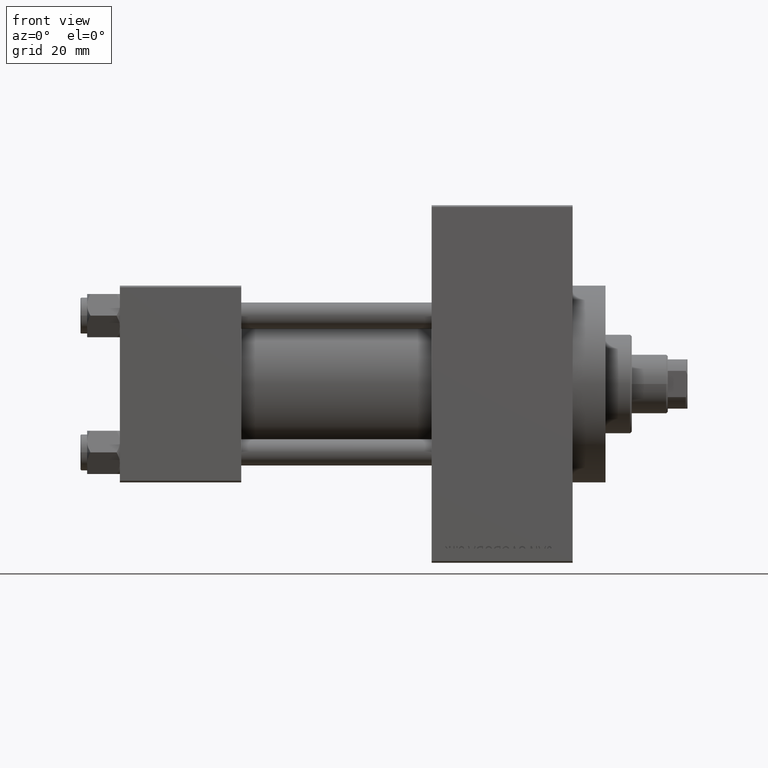
[diagram: clean part render]
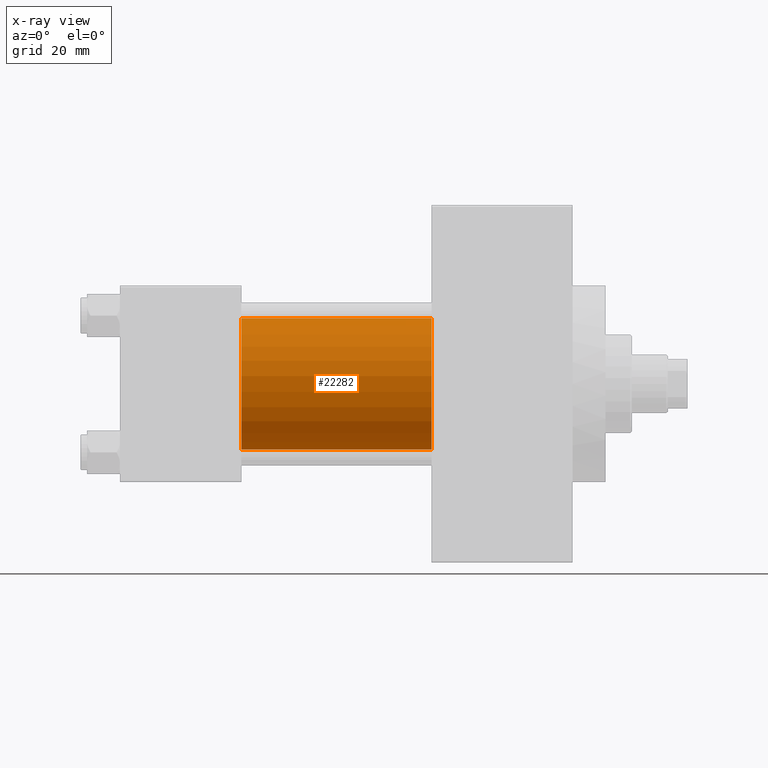
[diagram: x-ray — body ghosted, one internal face saturated and labeled with its STEP entity id]
A machine part, front view, then the same camera in x-ray: the body is ghosted and one INTERNAL B-rep face — a face not visible from any outside direction — is saturated and labeled: STEP entity #22282.
In plain terms, the highlighted cylindrical surface (partial cylindrical patch) has radius 20 mm, axis along (-1, -0, -0).
Its self-contained STEP definition (entity closure, byte-faithful):
#298 = DIRECTION ( 'NONE',  ( 0.000000000000000000, 0.000000000000000000, 1.000000000000000000 ) ) ;
#543 = DIRECTION ( 'NONE',  ( -1.000000000000000000, -0.000000000000000000, -0.000000000000000000 ) ) ;
#1072 = VECTOR ( 'NONE', #39948, 1000.000000000000000 ) ;
#1163 = VERTEX_POINT ( 'NONE', #10085 ) ;
#2867 = DIRECTION ( 'NONE',  ( -1.000000000000000000, -0.000000000000000000, -0.000000000000000000 ) ) ;
#3183 = CIRCLE ( 'NONE', #29094, 20.00000000000000000 ) ;
#4909 = CIRCLE ( 'NONE', #10980, 20.00000000000000000 ) ;
#5663 = CARTESIAN_POINT ( 'NONE',  ( 95.00000000000000000, -2.602085213965210642E-15, 0.000000000000000000 ) ) ;
#9243 = DIRECTION ( 'NONE',  ( 1.000000000000000000, 0.000000000000000000, 0.000000000000000000 ) ) ;
#9357 = CARTESIAN_POINT ( 'NONE',  ( 37.00000000000000000, -2.602085213965210642E-15, 20.00000000000000000 ) ) ;
#10085 = CARTESIAN_POINT ( 'NONE',  ( 95.00000000000000000, -2.602085213965210642E-15, 20.00000000000000000 ) ) ;
#10980 = AXIS2_PLACEMENT_3D ( 'NONE', #5663, #9243, #20247 ) ;
#11519 = FACE_OUTER_BOUND ( 'NONE', #21485, .T. ) ;
#11873 = EDGE_CURVE ( 'NONE', #1163, #18023, #33252, .T. ) ;
#12489 = AXIS2_PLACEMENT_3D ( 'NONE', #44037, #543, #298 ) ;
#16457 = ORIENTED_EDGE ( 'NONE', *, *, #39683, .F. ) ;
#18023 = VERTEX_POINT ( 'NONE', #9357 ) ;
#18706 = CYLINDRICAL_SURFACE ( 'NONE', #12489, 20.00000000000000000 ) ;
#20247 = DIRECTION ( 'NONE',  ( 0.000000000000000000, 0.000000000000000000, -1.000000000000000000 ) ) ;
#21485 = EDGE_LOOP ( 'NONE', ( #46363, #45162, #16457, #25800 ) ) ;
#22282 = ADVANCED_FACE ( 'NONE', ( #11519 ), #18706, .F. ) ;
#25511 = EDGE_CURVE ( 'NONE', #1163, #37705, #4909, .T. ) ;
#25800 = ORIENTED_EDGE ( 'NONE', *, *, #11873, .F. ) ;
#26377 = EDGE_CURVE ( 'NONE', #37705, #40705, #46804, .T. ) ;
#27447 = DIRECTION ( 'NONE',  ( 1.000000000000000000, 0.000000000000000000, 0.000000000000000000 ) ) ;
#29094 = AXIS2_PLACEMENT_3D ( 'NONE', #42760, #27447, #35575 ) ;
#29834 = CARTESIAN_POINT ( 'NONE',  ( 95.00000000000000000, -1.527916156705046464E-16, -20.00000000000000000 ) ) ;
#33252 = LINE ( 'NONE', #36362, #1072 ) ;
#33957 = VECTOR ( 'NONE', #2867, 1000.000000000000000 ) ;
#35575 = DIRECTION ( 'NONE',  ( 0.000000000000000000, 0.000000000000000000, -1.000000000000000000 ) ) ;
#36362 = CARTESIAN_POINT ( 'NONE',  ( 95.00000000000000000, -2.602085213965210642E-15, 20.00000000000000000 ) ) ;
#37705 = VERTEX_POINT ( 'NONE', #29834 ) ;
#39351 = CARTESIAN_POINT ( 'NONE',  ( 37.00000000000000000, -1.527916156705046464E-16, -20.00000000000000000 ) ) ;
#39631 = CARTESIAN_POINT ( 'NONE',  ( 95.00000000000000000, -1.527916156705046464E-16, -20.00000000000000000 ) ) ;
#39683 = EDGE_CURVE ( 'NONE', #18023, #40705, #3183, .T. ) ;
#39948 = DIRECTION ( 'NONE',  ( -1.000000000000000000, -0.000000000000000000, -0.000000000000000000 ) ) ;
#40705 = VERTEX_POINT ( 'NONE', #39351 ) ;
#42760 = CARTESIAN_POINT ( 'NONE',  ( 37.00000000000000000, -2.602085213965210642E-15, 0.000000000000000000 ) ) ;
#44037 = CARTESIAN_POINT ( 'NONE',  ( 95.00000000000000000, -2.602085213965210642E-15, 0.000000000000000000 ) ) ;
#45162 = ORIENTED_EDGE ( 'NONE', *, *, #26377, .T. ) ;
#46363 = ORIENTED_EDGE ( 'NONE', *, *, #25511, .T. ) ;
#46804 = LINE ( 'NONE', #39631, #33957 ) ;